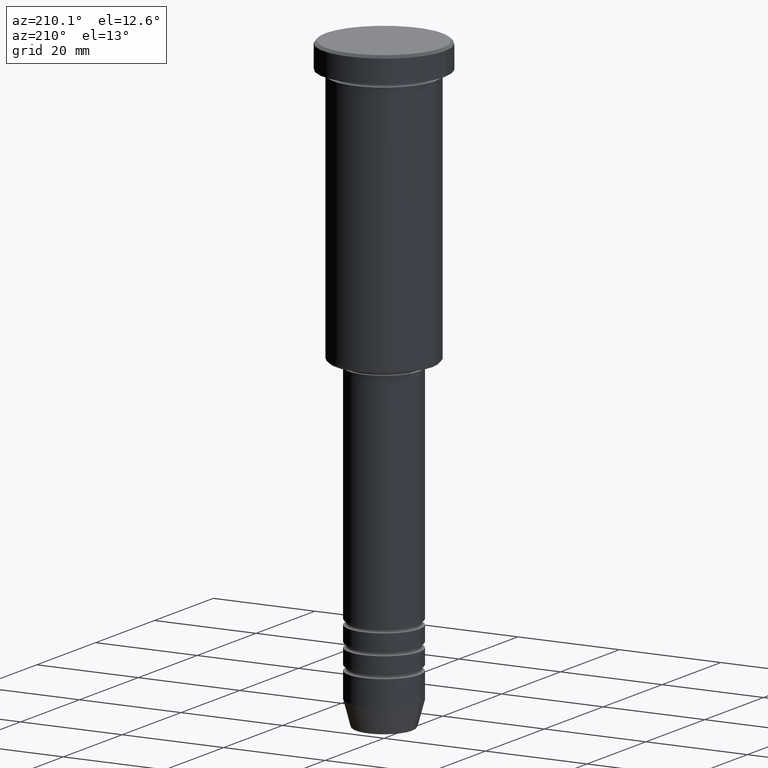
[diagram: clean part render]
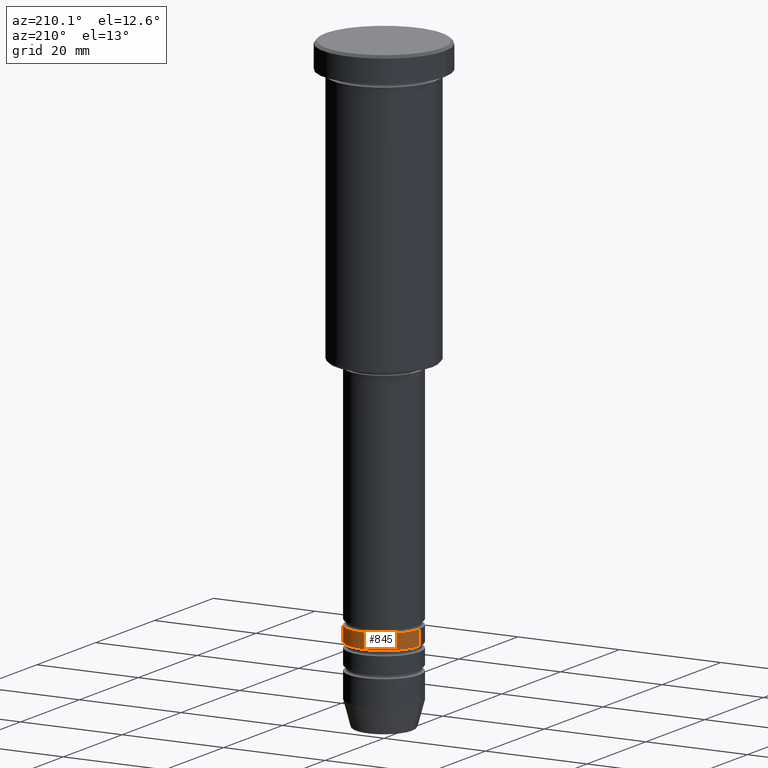
[diagram: same view with one face highlighted and labeled with its STEP entity id]
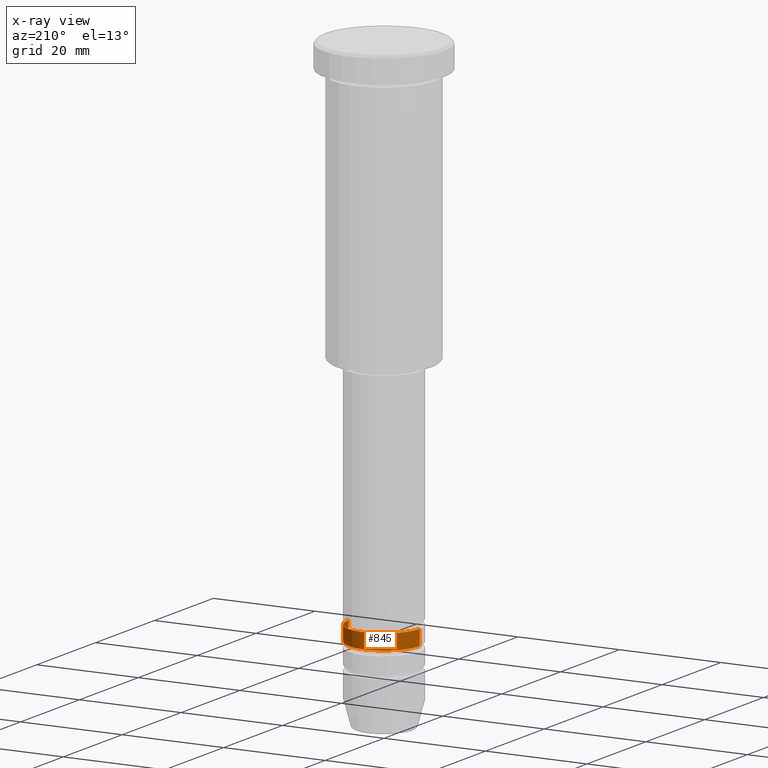
[diagram: x-ray of the same camera — body ghosted, the highlighted face saturated]
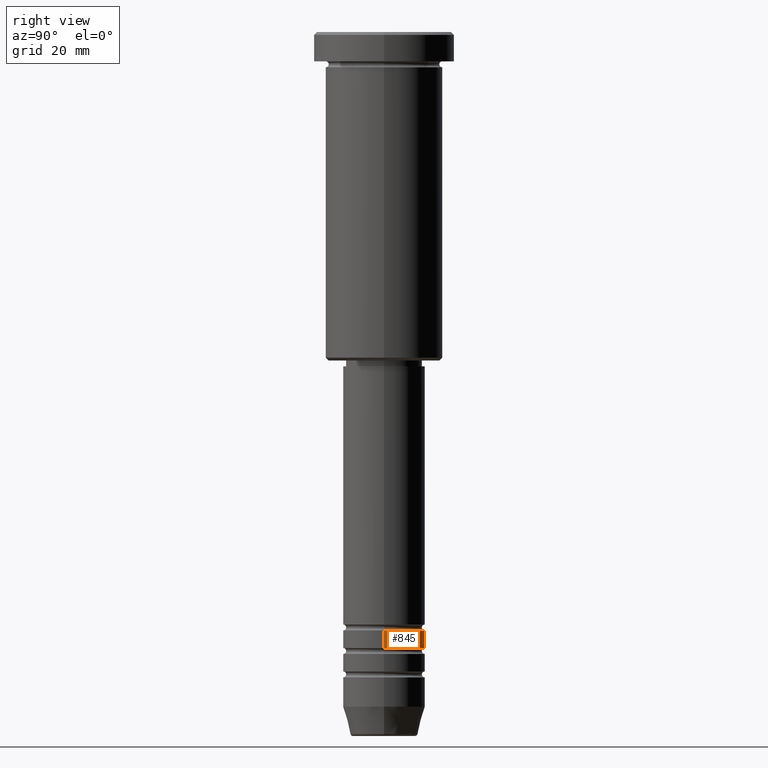
[diagram: same view with one face highlighted and labeled with its STEP entity id]
A machine part, auxiliary view. The second image highlights one B-rep face of the part: STEP entity #845.
The next image is the same camera in x-ray: the body ghosted, the highlighted face saturated — about 0% of this face is hidden behind the body in this view.
A second angle (right view) of the same face is appended — the face is thin or edge-on in the first view.
In plain terms, the highlighted cylindrical surface (partial cylindrical patch) has radius 7 mm, axis along (-0, -0, 1).
Its self-contained STEP definition (entity closure, byte-faithful):
#14 = DIRECTION ( 'NONE',  ( 1.000000000000000000, 0.000000000000000000, 0.000000000000000000 ) ) ;
#46 = ORIENTED_EDGE ( 'NONE', *, *, #200, .F. ) ;
#48 = LINE ( 'NONE', #403, #692 ) ;
#86 = EDGE_CURVE ( 'NONE', #784, #652, #388, .T. ) ;
#192 = CARTESIAN_POINT ( 'NONE',  ( 0.000000000000000000, 0.000000000000000000, 0.000000000000000000 ) ) ;
#200 = EDGE_CURVE ( 'NONE', #319, #292, #48, .T. ) ;
#204 = CARTESIAN_POINT ( 'NONE',  ( 0.000000000000000000, 0.000000000000000000, -101.9999999999999858 ) ) ;
#214 = AXIS2_PLACEMENT_3D ( 'NONE', #1078, #672, #381 ) ;
#241 = CARTESIAN_POINT ( 'NONE',  ( -7.000000000000002665, 8.572527594031475162E-16, -104.9999999999999858 ) ) ;
#272 = CARTESIAN_POINT ( 'NONE',  ( 7.000000000000000000, 0.000000000000000000, -101.9999999999999858 ) ) ;
#292 = VERTEX_POINT ( 'NONE', #272 ) ;
#319 = VERTEX_POINT ( 'NONE', #991 ) ;
#323 = DIRECTION ( 'NONE',  ( 1.000000000000000000, 0.000000000000000000, 0.000000000000000000 ) ) ;
#336 = CIRCLE ( 'NONE', #214, 7.000000000000002665 ) ;
#345 = EDGE_CURVE ( 'NONE', #319, #784, #336, .T. ) ;
#381 = DIRECTION ( 'NONE',  ( 1.000000000000000000, 0.000000000000000000, 0.000000000000000000 ) ) ;
#388 = LINE ( 'NONE', #562, #962 ) ;
#403 = CARTESIAN_POINT ( 'NONE',  ( 7.000000000000000888, 0.000000000000000000, 0.000000000000000000 ) ) ;
#441 = ORIENTED_EDGE ( 'NONE', *, *, #345, .T. ) ;
#461 = CARTESIAN_POINT ( 'NONE',  ( -7.000000000000000000, 8.572527594031473190E-16, -101.9999999999999858 ) ) ;
#462 = DIRECTION ( 'NONE',  ( -0.000000000000000000, -0.000000000000000000, 1.000000000000000000 ) ) ;
#465 = ORIENTED_EDGE ( 'NONE', *, *, #1006, .F. ) ;
#491 = ORIENTED_EDGE ( 'NONE', *, *, #86, .T. ) ;
#562 = CARTESIAN_POINT ( 'NONE',  ( -7.000000000000000888, 8.572527594031474176E-16, 0.000000000000000000 ) ) ;
#591 = CIRCLE ( 'NONE', #1167, 7.000000000000000000 ) ;
#652 = VERTEX_POINT ( 'NONE', #461 ) ;
#668 = AXIS2_PLACEMENT_3D ( 'NONE', #192, #864, #14 ) ;
#672 = DIRECTION ( 'NONE',  ( -0.000000000000000000, -0.000000000000000000, 1.000000000000000000 ) ) ;
#692 = VECTOR ( 'NONE', #1143, 1000.000000000000000 ) ;
#752 = FACE_OUTER_BOUND ( 'NONE', #971, .T. ) ;
#784 = VERTEX_POINT ( 'NONE', #241 ) ;
#845 = ADVANCED_FACE ( 'NONE', ( #752 ), #858, .T. ) ;
#858 = CYLINDRICAL_SURFACE ( 'NONE', #668, 7.000000000000000888 ) ;
#864 = DIRECTION ( 'NONE',  ( -0.000000000000000000, -0.000000000000000000, 1.000000000000000000 ) ) ;
#962 = VECTOR ( 'NONE', #462, 1000.000000000000000 ) ;
#971 = EDGE_LOOP ( 'NONE', ( #441, #491, #465, #46 ) ) ;
#991 = CARTESIAN_POINT ( 'NONE',  ( 7.000000000000002665, 0.000000000000000000, -104.9999999999999858 ) ) ;
#1006 = EDGE_CURVE ( 'NONE', #292, #652, #591, .T. ) ;
#1078 = CARTESIAN_POINT ( 'NONE',  ( 0.000000000000000000, 0.000000000000000000, -104.9999999999999858 ) ) ;
#1142 = DIRECTION ( 'NONE',  ( -0.000000000000000000, -0.000000000000000000, 1.000000000000000000 ) ) ;
#1143 = DIRECTION ( 'NONE',  ( -0.000000000000000000, -0.000000000000000000, 1.000000000000000000 ) ) ;
#1167 = AXIS2_PLACEMENT_3D ( 'NONE', #204, #1142, #323 ) ;